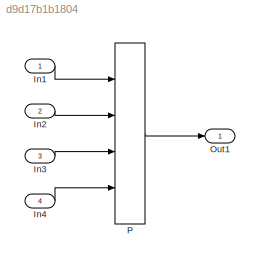
MODEL slx_d9d17b1b1804
KIND model
CONFIG AbsTol = auto
CONFIG EnableMultiTasking = off
CONFIG FixedStep = auto
CONFIG MaxStep = auto
CONFIG MinStep = auto
CONFIG RelTol = 1e-3
CONFIG SampleTimeConstraint = Unconstrained
CONFIG Solver = FixedStepDiscrete
CONFIG SolverName = FixedStepDiscrete
CONFIG StartTime = 0.0
CONFIG StopTime = 10.0
BLOCK [Inport] In1
  IconDisplay = Port number
  OutDataTypeStr = single
  OutMax = 127
  OutMin = 0
  PortDimensions = 3
BLOCK [Inport] In2
  IconDisplay = Port number
  OutDataTypeStr = single
  OutMax = 127
  OutMin = 0
  Port = 2
BLOCK [Inport] In3
  IconDisplay = Port number
  OutDataTypeStr = single
  OutMax = 127
  OutMin = 0
  Port = 3
BLOCK [Inport] In4
  IconDisplay = Port number
  OutDataTypeStr = single
  OutMax = 127
  OutMin = 0
  Port = 4
BLOCK [Outport] Out1
  IconDisplay = Port number
BLOCK [Lookup_n-D] P
  BreakpointsForDimension1 = [42.6513511694585;61.4708993670596]
  BreakpointsForDimension1DataTypeStr = int8
  BreakpointsForDimension2 = [13.4758646712027;36.0498996918883;39.3346119981828;46.8420238850007;65.3871381105432]
  BreakpointsForDimension2DataTypeStr = int8
  BreakpointsForDimension3 = [16.070339310246;23.5095409767166;70.3931137268698]
  BreakpointsForDimension3DataTypeStr = int8
  BreakpointsForDimension4 = [13.3174570306675;27.7434665156099]
  BreakpointsForDimension4DataTypeStr = int8
  ExtrapMethod = Clip
  InternalRulePriority = Speed
  InterpMethod = Flat
  NumberOfTableDimensions = 4
  OutDataTypeStr = uint32
  Ports = [4, 1]
  RndMeth = Simplest
  SaturateOnIntegerOverflow = on
  Table = reshape(repmat([4 5 6 7 8;16 19 20 21 22;10 18 23 24 25],2,2),[2,5,3,2])
  UseLastTableValue = on
LINE In1:1 -> P:1
LINE In2:1 -> P:2
LINE In3:1 -> P:3
LINE In4:1 -> P:4
LINE P:1 -> Out1:1
